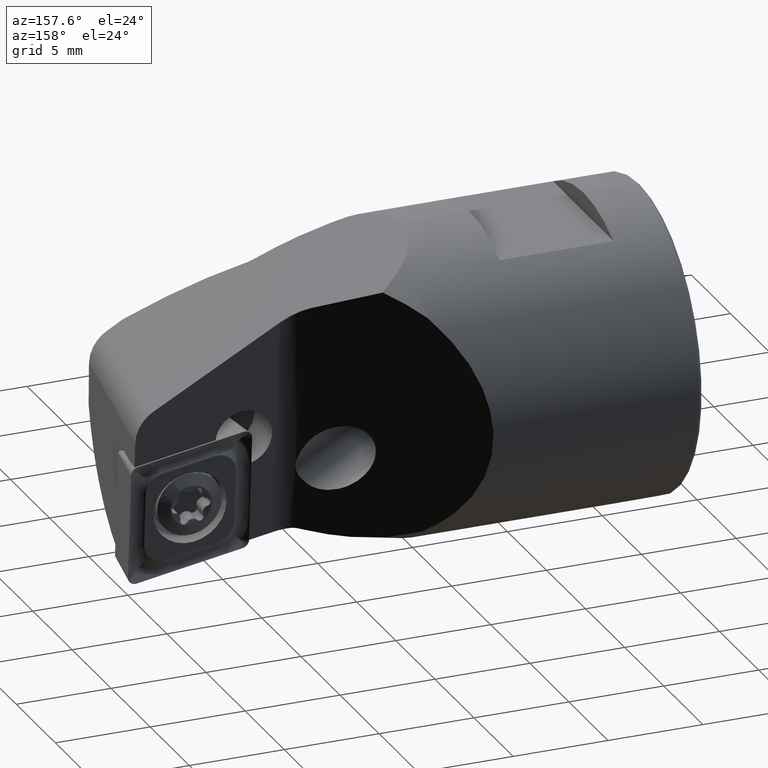
[diagram: clean part render]
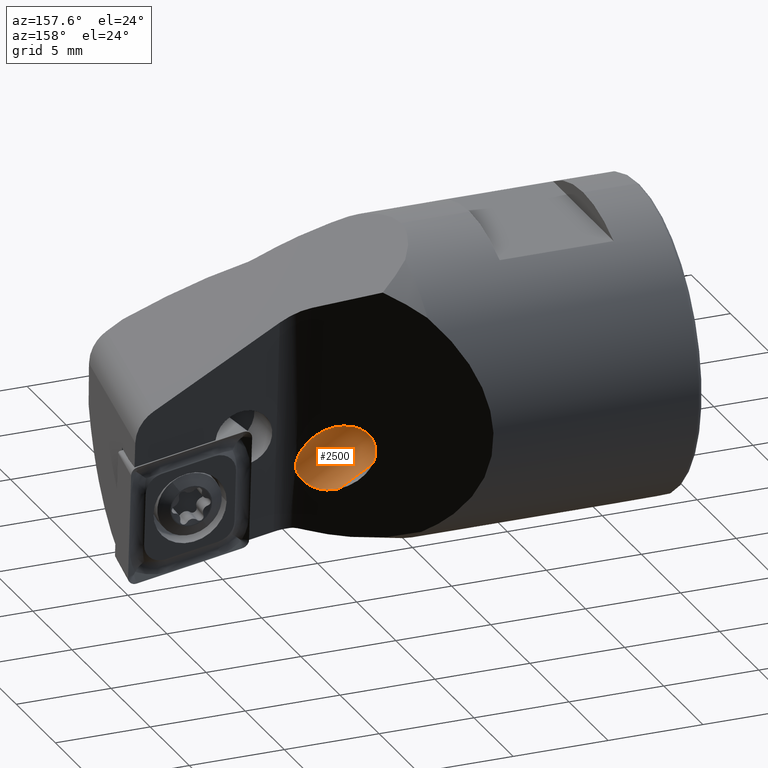
[diagram: same view with one face highlighted and labeled with its STEP entity id]
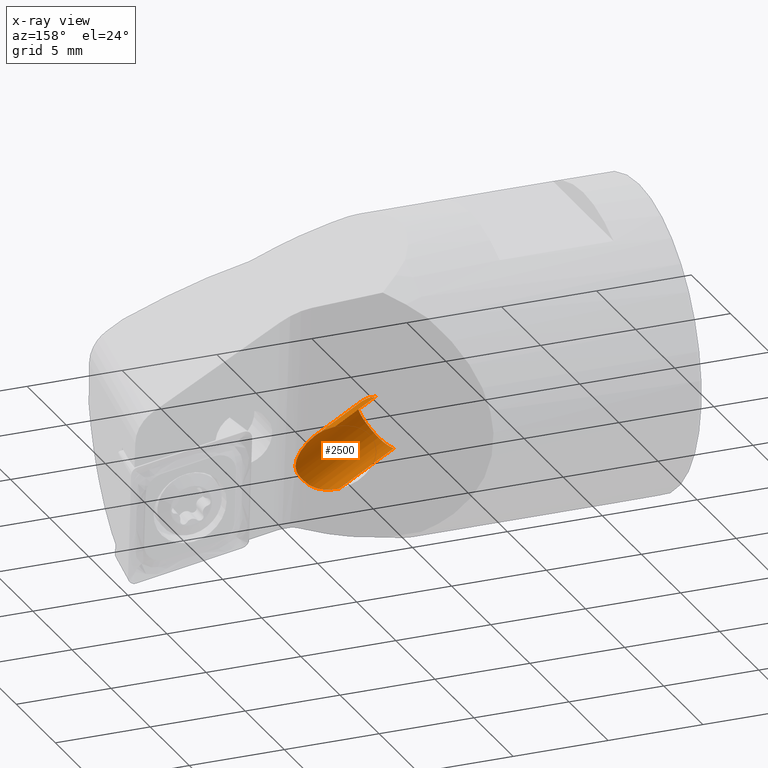
[diagram: x-ray of the same camera — body ghosted, the highlighted face saturated]
A machine part, auxiliary view. The second image highlights one B-rep face of the part: STEP entity #2500.
The next image is the same camera in x-ray: the body ghosted, the highlighted face saturated — about 0% of this face is hidden behind the body in this view.
In plain terms, the highlighted cylindrical surface (edge-blend (fillet) strip) has radius 1.5 mm, axis along (0.866, 0, -0.5).
Its self-contained STEP definition (entity closure, byte-faithful):
#32 = B_SPLINE_CURVE_WITH_KNOTS ( 'NONE', 3,
 ( #4348, #526, #630, #218, #3017, #2838, #4265, #3103, #2777, #851, #624, #1574, #905, #4274, #922, #136, #1724, #4512, #2229, #3452, #2517, #1271, #2352, #1980, #4506, #1822 ),
 .UNSPECIFIED., .F., .F.,
 ( 4, 2, 2, 2, 2, 2, 2, 2, 2, 2, 2, 2, 4 ),
 ( 0.005889853641828863900, 0.006510023076138788200, 0.007130192510448713300, 0.007440277227603675800, 0.007750361944758638400, 0.008060446661913599200, 0.008370531379068561800, 0.008680616096223524300, 0.008990700813378486900, 0.009300785530533449400, 0.009610870247688412000, 0.01023103968199833900, 0.01085120911630826600 ),
 .UNSPECIFIED. ) ;
#91 = FACE_OUTER_BOUND ( 'NONE', #3754, .T. ) ;
#136 = CARTESIAN_POINT ( 'NONE',  ( -12.33808854650351200, 0.5272123939485079400, 6.773863320864220100 ) ) ;
#156 = CARTESIAN_POINT ( 'NONE',  ( -8.650137952231258300, 0.4988492144385998100, 4.901807767676988400 ) ) ;
#172 = B_SPLINE_CURVE_WITH_KNOTS ( 'NONE', 3,
 ( #2223, #1545, #911, #2100, #3906, #2823, #156, #4413, #4290, #3418, #1761, #1409, #1744, #3225, #694, #1796 ),
 .UNSPECIFIED., .F., .F.,
 ( 4, 2, 2, 2, 2, 2, 2, 4 ),
 ( 0.0000000000000000000, 0.0003245057587542229100, 0.0006490115175084458300, 0.0009735172762626688000, 0.001298023035016891700, 0.001622528793771114600, 0.001947034552525337600, 0.002596046070033788100 ),
 .UNSPECIFIED. ) ;
#177 = CARTESIAN_POINT ( 'NONE',  ( -9.682253730780734800, 1.596907776008011700, 7.322102605397409600 ) ) ;
#218 = CARTESIAN_POINT ( 'NONE',  ( -11.88431453301526900, 1.347543106653669200, 8.433155022803564500 ) ) ;
#348 = EDGE_CURVE ( 'NONE', #4581, #1165, #1099, .T. ) ;
#526 = CARTESIAN_POINT ( 'NONE',  ( -12.13739972172698100, 1.828405405684046600, 8.739581804170081000 ) ) ;
#536 = ORIENTED_EDGE ( 'NONE', *, *, #3239, .T. ) ;
#543 = CARTESIAN_POINT ( 'NONE',  ( -13.19683652338959200, 2.000000000001053400, 5.887146311658236500 ) ) ;
#624 = CARTESIAN_POINT ( 'NONE',  ( -11.93940866621459100, 0.5883223757527842300, 7.490957576448712600 ) ) ;
#630 = CARTESIAN_POINT ( 'NONE',  ( -12.04296424274623900, 1.666316523282144000, 8.652866277956761100 ) ) ;
#694 = CARTESIAN_POINT ( 'NONE',  ( -8.996143539572342400, 0.8377464565922694300, 6.301382297061074700 ) ) ;
#706 = VERTEX_POINT ( 'NONE', #543 ) ;
#763 = CARTESIAN_POINT ( 'NONE',  ( -10.30108480331356100, 1.999999999999998700, 4.215283276569387300 ) ) ;
#851 = CARTESIAN_POINT ( 'NONE',  ( -11.89954893044311700, 0.6280858414302027400, 7.580453831087187800 ) ) ;
#891 = CARTESIAN_POINT ( 'NONE',  ( -9.085786437626906000, 0.9394367761726845100, 6.470538052576607400 ) ) ;
#905 = CARTESIAN_POINT ( 'NONE',  ( -12.07630396032258200, 0.5119292051605037800, 7.221555205901550400 ) ) ;
#911 = CARTESIAN_POINT ( 'NONE',  ( -8.953466176533373400, 0.6686652216953216100, 4.361723318315442000 ) ) ;
#922 = CARTESIAN_POINT ( 'NONE',  ( -12.23168623790553900, 0.4995803131304213400, 6.949567136829642800 ) ) ;
#929 = CARTESIAN_POINT ( 'NONE',  ( -5.294319247514754200, 1.999999999999999100, 3.056676642728469100 ) ) ;
#943 = EDGE_CURVE ( 'NONE', #3997, #2622, #2583, .T. ) ;
#992 = CARTESIAN_POINT ( 'NONE',  ( -9.085786437626906000, 0.7829851899749659100, 4.233176133029942900 ) ) ;
#1092 = ORIENTED_EDGE ( 'NONE', *, *, #1275, .F. ) ;
#1099 =( BOUNDED_CURVE ( )  B_SPLINE_CURVE ( 3, ( #891, #1238, #177, #3047 ),
 .UNSPECIFIED., .F., .F. ) 
 B_SPLINE_CURVE_WITH_KNOTS ( ( 4, 4 ),
 ( 1.200551389994845000, 1.985858154162889700 ),
 .UNSPECIFIED. ) 
 CURVE ( )  GEOMETRIC_REPRESENTATION_ITEM ( )  RATIONAL_B_SPLINE_CURVE ( ( 1.000000000000000000, 0.9492646800213014900, 0.9492646800213014900, 1.000000000000000000 ) ) 
 REPRESENTATION_ITEM ( '' )  );
#1165 = VERTEX_POINT ( 'NONE', #4095 ) ;
#1207 = CARTESIAN_POINT ( 'NONE',  ( -4.544319247514752500, 1.999999999999999100, 4.355714748405125300 ) ) ;
#1238 = CARTESIAN_POINT ( 'NONE',  ( -9.337070757325451000, 1.224492071463761500, 6.944710461883818000 ) ) ;
#1271 = CARTESIAN_POINT ( 'NONE',  ( -12.84437047734084200, 1.050563831606774700, 6.053875739435273600 ) ) ;
#1275 = EDGE_CURVE ( 'NONE', #2622, #4581, #172, .T. ) ;
#1409 = CARTESIAN_POINT ( 'NONE',  ( -8.755256549120400000, 0.6206145353639640500, 5.740888172382908800 ) ) ;
#1545 = CARTESIAN_POINT ( 'NONE',  ( -9.019824797867318700, 0.7211312922458366100, 4.294223012093533000 ) ) ;
#1565 = CYLINDRICAL_SURFACE ( 'NONE', #3429, 1.499999999999999800 ) ;
#1574 = CARTESIAN_POINT ( 'NONE',  ( -12.02786391736692400, 0.5304226640310741900, 7.311519921370802400 ) ) ;
#1724 = CARTESIAN_POINT ( 'NONE',  ( -12.39250164292064200, 0.5520862796842787000, 6.686717749387210800 ) ) ;
#1744 = CARTESIAN_POINT ( 'NONE',  ( -8.791390424912332700, 0.6509972475714188600, 5.837515053122576300 ) ) ;
#1761 = CARTESIAN_POINT ( 'NONE',  ( -8.692854535925917500, 0.5679660500248119300, 5.541596031131300400 ) ) ;
#1796 = CARTESIAN_POINT ( 'NONE',  ( -9.085786437626906000, 0.9394367761726845100, 6.470538052576607400 ) ) ;
#1797 = VECTOR ( 'NONE', #2039, 1000.000000000000100 ) ;
#1822 = CARTESIAN_POINT ( 'NONE',  ( -13.19683652338959200, 2.000000000001053400, 5.887146311658236500 ) ) ;
#1980 = CARTESIAN_POINT ( 'NONE',  ( -13.08116947055953900, 1.598472127609015900, 5.867231761508796800 ) ) ;
#2025 = LINE ( 'NONE', #3620, #1797 ) ;
#2039 = DIRECTION ( 'NONE',  ( 0.8660254037844379300, 1.256883473624697700E-016, -0.5000000000000011100 ) ) ;
#2100 = CARTESIAN_POINT ( 'NONE',  ( -8.827591932614314600, 0.5824960584958947000, 4.516666476222583900 ) ) ;
#2172 = DIRECTION ( 'NONE',  ( -0.5000000000000011100, 0.0000000000000000000, -0.8660254037844379300 ) ) ;
#2223 = CARTESIAN_POINT ( 'NONE',  ( -9.085786437626906000, 0.7829851899749659100, 4.233176133029942900 ) ) ;
#2229 = CARTESIAN_POINT ( 'NONE',  ( -12.55069299561470000, 0.6663268887756280700, 6.444388307948904600 ) ) ;
#2244 = VECTOR ( 'NONE', #3939, 1000.000000000000100 ) ;
#2352 = CARTESIAN_POINT ( 'NONE',  ( -12.93184310853528300, 1.225417542473337300, 5.964589348000608900 ) ) ;
#2500 = ADVANCED_FACE ( 'NONE', ( #91 ), #1565, .F. ) ;
#2517 = CARTESIAN_POINT ( 'NONE',  ( -12.70272835605608300, 0.8386436745868566200, 6.231296393791317300 ) ) ;
#2583 =( BOUNDED_CURVE ( )  B_SPLINE_CURVE ( 3, ( #763, #4002, #3646, #2917 ),
 .UNSPECIFIED., .F., .T. ) 
 B_SPLINE_CURVE_WITH_KNOTS ( ( 4, 4 ),
 ( 5.127450807752682100, 6.073897040963347900 ),
 .UNSPECIFIED. ) 
 CURVE ( )  GEOMETRIC_REPRESENTATION_ITEM ( )  RATIONAL_B_SPLINE_CURVE ( ( 1.000000000000000000, 0.9267359696000010400, 0.9267359696000010400, 1.000000000000000000 ) ) 
 REPRESENTATION_ITEM ( '' )  );
#2622 = VERTEX_POINT ( 'NONE', #992 ) ;
#2765 = VERTEX_POINT ( 'NONE', #4164 ) ;
#2777 = CARTESIAN_POINT ( 'NONE',  ( -11.83725152494245100, 0.7244034898986008200, 7.753181116794006100 ) ) ;
#2823 = CARTESIAN_POINT ( 'NONE',  ( -8.679510365131344300, 0.5075922999021661400, 4.796771469049599700 ) ) ;
#2838 = CARTESIAN_POINT ( 'NONE',  ( -11.79122311426591300, 0.9778410517550790700, 8.079913347337422300 ) ) ;
#2856 = CARTESIAN_POINT ( 'NONE',  ( -10.30108480331356100, 1.999999999999998700, 4.215283276569387300 ) ) ;
#2917 = CARTESIAN_POINT ( 'NONE',  ( -9.085786437626906000, 0.7829851899749659100, 4.233176133029942900 ) ) ;
#3017 = CARTESIAN_POINT ( 'NONE',  ( -11.82293764054344900, 1.195298658463755000, 8.303601612447874200 ) ) ;
#3039 = ORIENTED_EDGE ( 'NONE', *, *, #4630, .F. ) ;
#3047 = CARTESIAN_POINT ( 'NONE',  ( -10.06879645216439000, 1.999999999999998200, 7.545273149641554200 ) ) ;
#3103 = CARTESIAN_POINT ( 'NONE',  ( -11.81422365980769800, 0.7821618990376575400, 7.838636065966497300 ) ) ;
#3135 = DIRECTION ( 'NONE',  ( 0.8660254037844380400, 1.256883473624698000E-016, -0.5000000000000011100 ) ) ;
#3211 = ORIENTED_EDGE ( 'NONE', *, *, #943, .F. ) ;
#3225 = CARTESIAN_POINT ( 'NONE',  ( -8.907870319122951100, 0.7538015781606519600, 6.120888775576102800 ) ) ;
#3239 = EDGE_CURVE ( 'NONE', #2765, #1165, #3527, .T. ) ;
#3418 = CARTESIAN_POINT ( 'NONE',  ( -8.666279481765132100, 0.5454577285575039600, 5.437869443733776900 ) ) ;
#3429 = AXIS2_PLACEMENT_3D ( 'NONE', #929, #3135, #2172 ) ;
#3452 = CARTESIAN_POINT ( 'NONE',  ( -12.65284436492781900, 0.7747952067440245800, 6.298697938029213200 ) ) ;
#3527 = LINE ( 'NONE', #1207, #2244 ) ;
#3620 = CARTESIAN_POINT ( 'NONE',  ( -6.044319247514755100, 1.999999999999999100, 1.757638537051812200 ) ) ;
#3638 = ORIENTED_EDGE ( 'NONE', *, *, #4473, .F. ) ;
#3646 = CARTESIAN_POINT ( 'NONE',  ( -9.392362913216439700, 1.070469704253065100, 3.949442479693411100 ) ) ;
#3754 = EDGE_LOOP ( 'NONE', ( #3039, #536, #3848, #1092, #3211, #3638 ) ) ;
#3848 = ORIENTED_EDGE ( 'NONE', *, *, #348, .F. ) ;
#3906 = CARTESIAN_POINT ( 'NONE',  ( -8.769267782425167500, 0.5497613701437316100, 4.603161092423170500 ) ) ;
#3939 = DIRECTION ( 'NONE',  ( 0.8660254037844379300, 1.256883473624697700E-016, -0.5000000000000011100 ) ) ;
#3997 = VERTEX_POINT ( 'NONE', #2856 ) ;
#4002 = CARTESIAN_POINT ( 'NONE',  ( -9.829487907300499900, 1.508212078185927800, 3.943006681707252900 ) ) ;
#4095 = CARTESIAN_POINT ( 'NONE',  ( -10.06879645216439000, 1.999999999999998200, 7.545273149641554200 ) ) ;
#4164 = CARTESIAN_POINT ( 'NONE',  ( -12.23907642289798800, 1.999999999999793300, 8.798284874962645200 ) ) ;
#4218 = CARTESIAN_POINT ( 'NONE',  ( -9.085786437626906000, 0.9394367761726845100, 6.470538052576607400 ) ) ;
#4265 = CARTESIAN_POINT ( 'NONE',  ( -11.79128842880926900, 0.9092479680186895700, 8.002224737467594600 ) ) ;
#4274 = CARTESIAN_POINT ( 'NONE',  ( -12.17877411301576600, 0.4963653039552804500, 7.039539259557988000 ) ) ;
#4290 = CARTESIAN_POINT ( 'NONE',  ( -8.633558585527843800, 0.5122874079693747800, 5.226595339891493300 ) ) ;
#4348 = CARTESIAN_POINT ( 'NONE',  ( -12.23907642289798800, 1.999999999999793300, 8.798284874962645200 ) ) ;
#4413 = CARTESIAN_POINT ( 'NONE',  ( -8.627458120261877600, 0.5013981356867356400, 5.117899774948111400 ) ) ;
#4473 = EDGE_CURVE ( 'NONE', #706, #3997, #2025, .T. ) ;
#4506 = CARTESIAN_POINT ( 'NONE',  ( -13.14528010141738800, 1.801279022920170900, 5.857380197557344700 ) ) ;
#4512 = CARTESIAN_POINT ( 'NONE',  ( -12.49875812020594500, 0.6217840371488071400, 6.522081073942851000 ) ) ;
#4581 = VERTEX_POINT ( 'NONE', #4218 ) ;
#4630 = EDGE_CURVE ( 'NONE', #2765, #706, #32, .T. ) ;